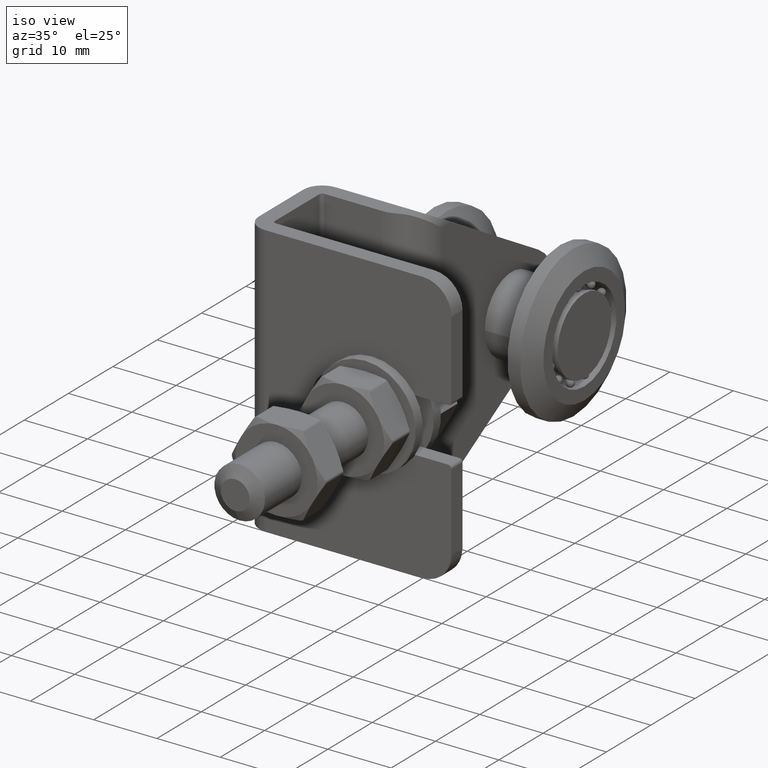
[diagram: clean part render]
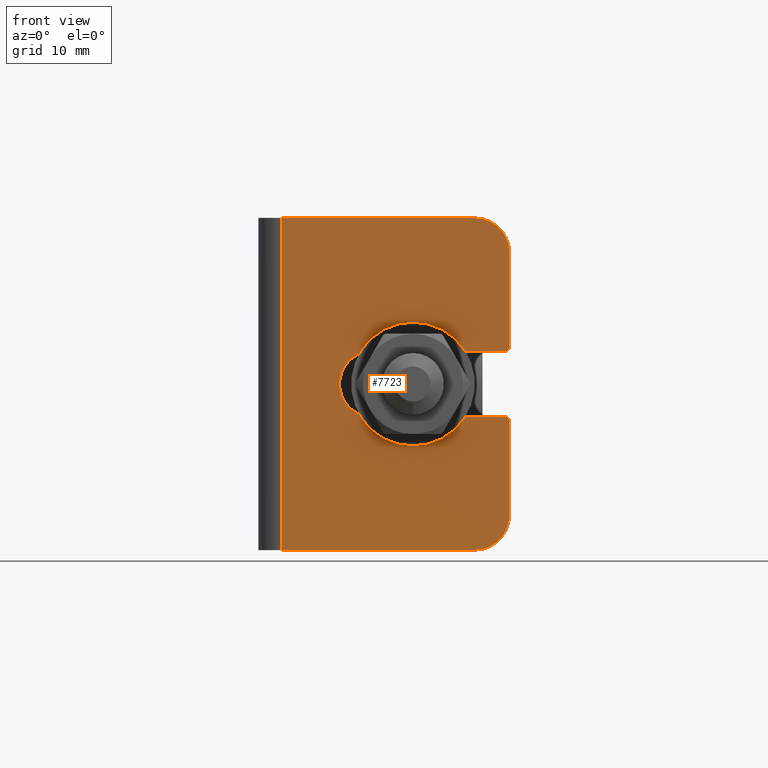
[diagram: tour spotlight — one face highlighted and labeled with its STEP entity id]
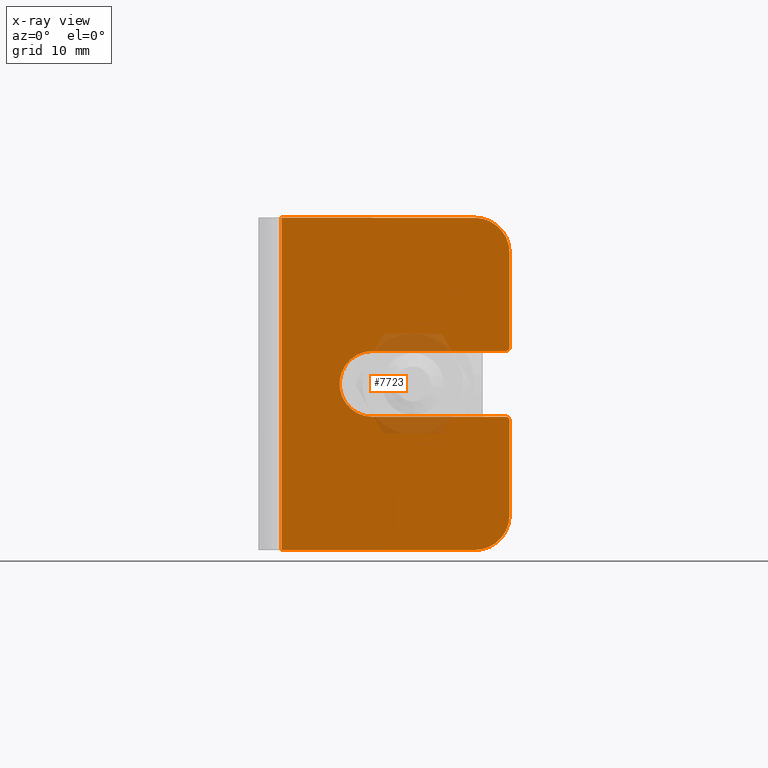
[diagram: x-ray of the same camera — body ghosted, this tour face saturated]
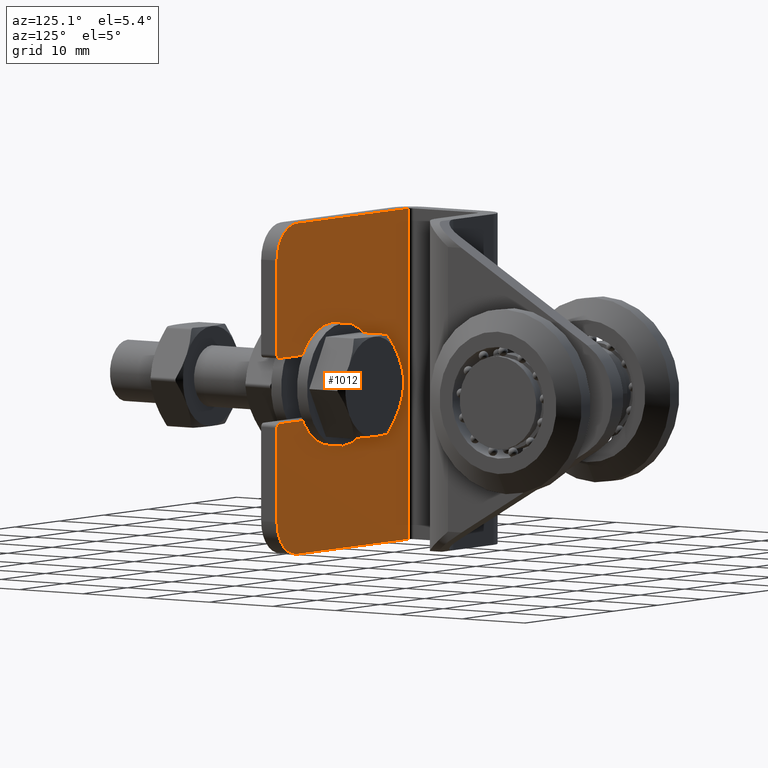
[diagram: tour spotlight — one face highlighted and labeled with its STEP entity id]
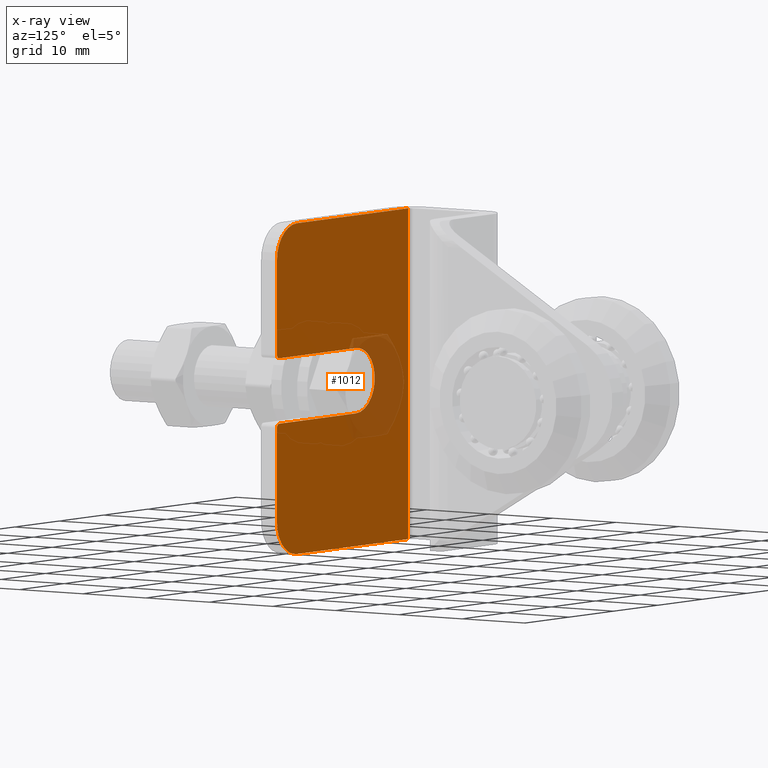
[diagram: x-ray of the same camera — body ghosted, this tour face saturated]
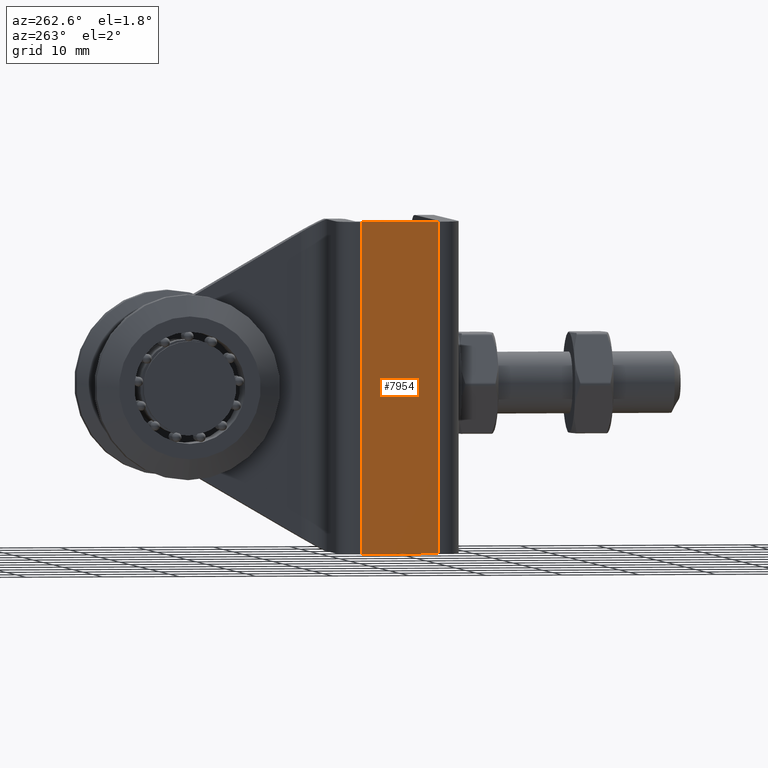
[diagram: tour spotlight — one face highlighted and labeled with its STEP entity id]
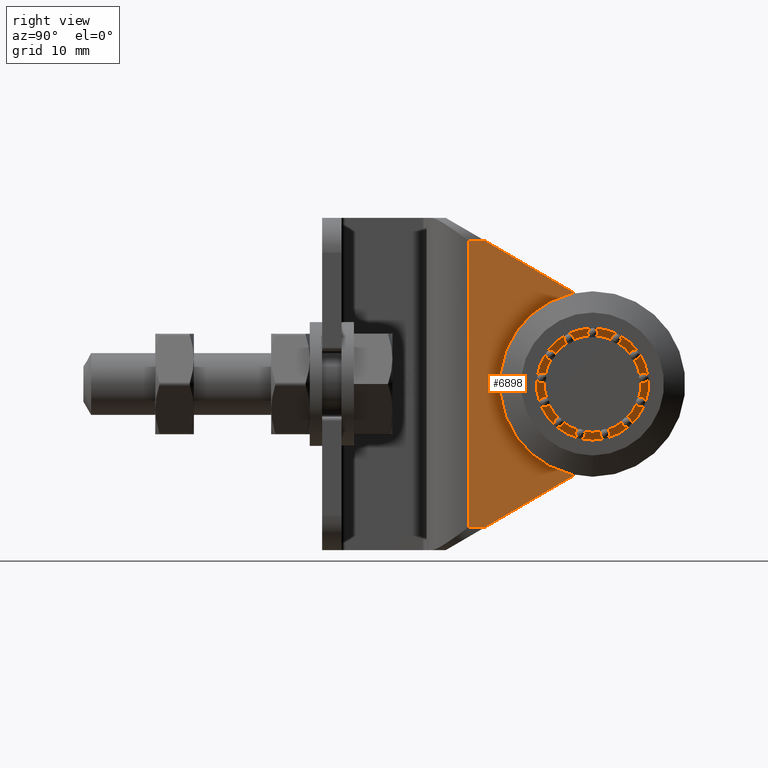
[diagram: tour spotlight — one face highlighted and labeled with its STEP entity id]
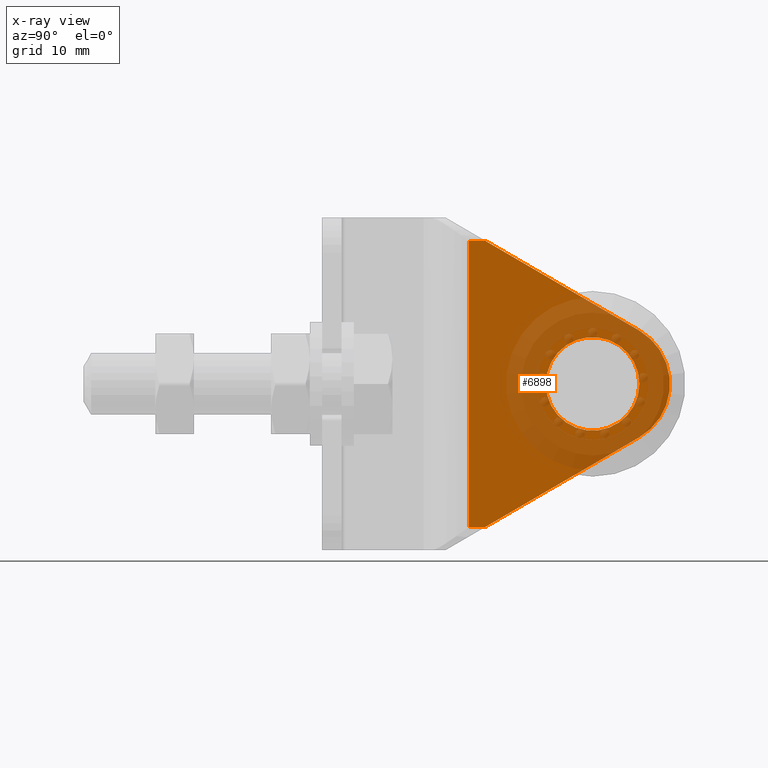
[diagram: x-ray of the same camera — body ghosted, this tour face saturated]
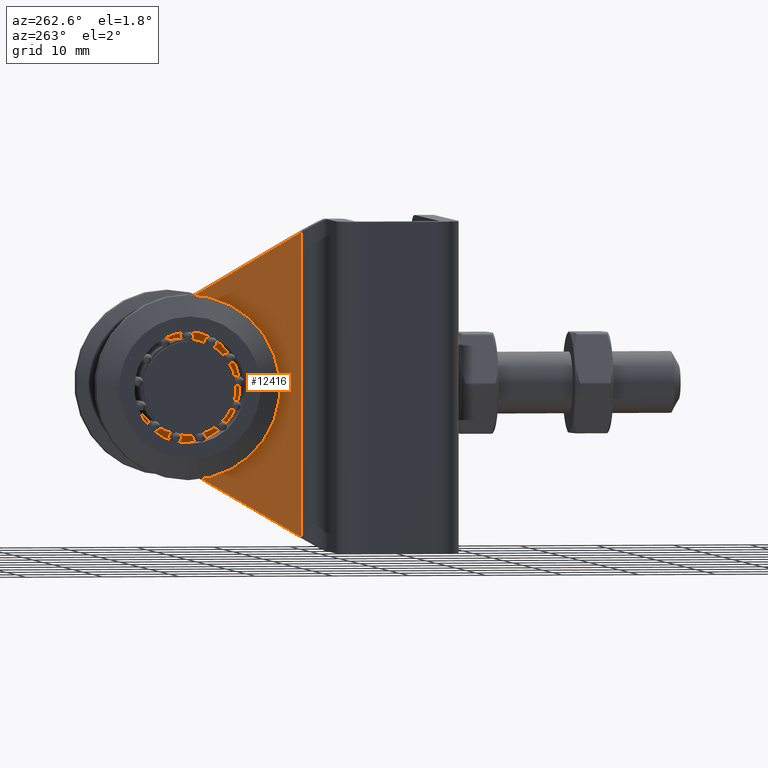
[diagram: tour spotlight — one face highlighted and labeled with its STEP entity id]
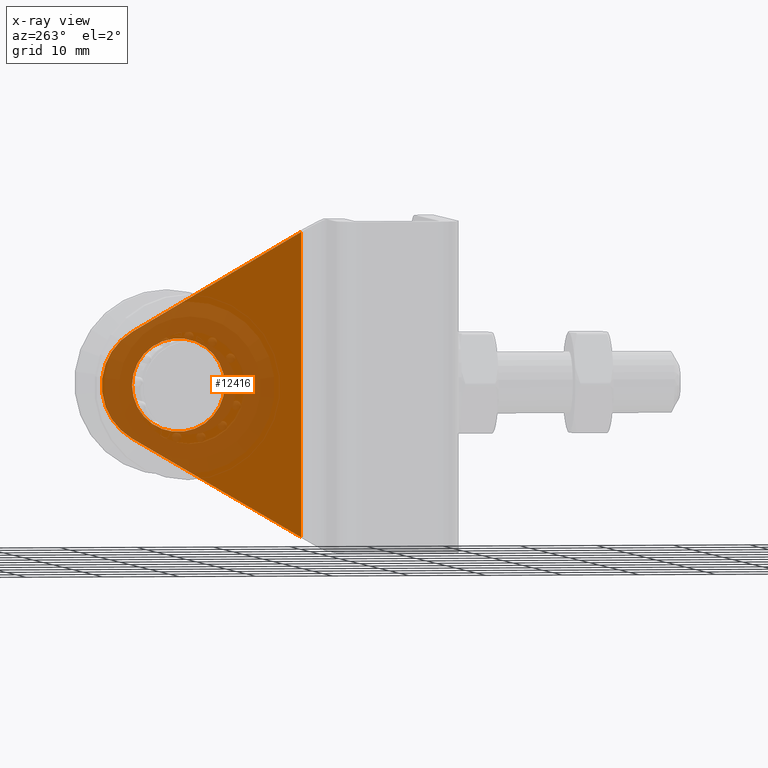
[diagram: x-ray of the same camera — body ghosted, this tour face saturated]
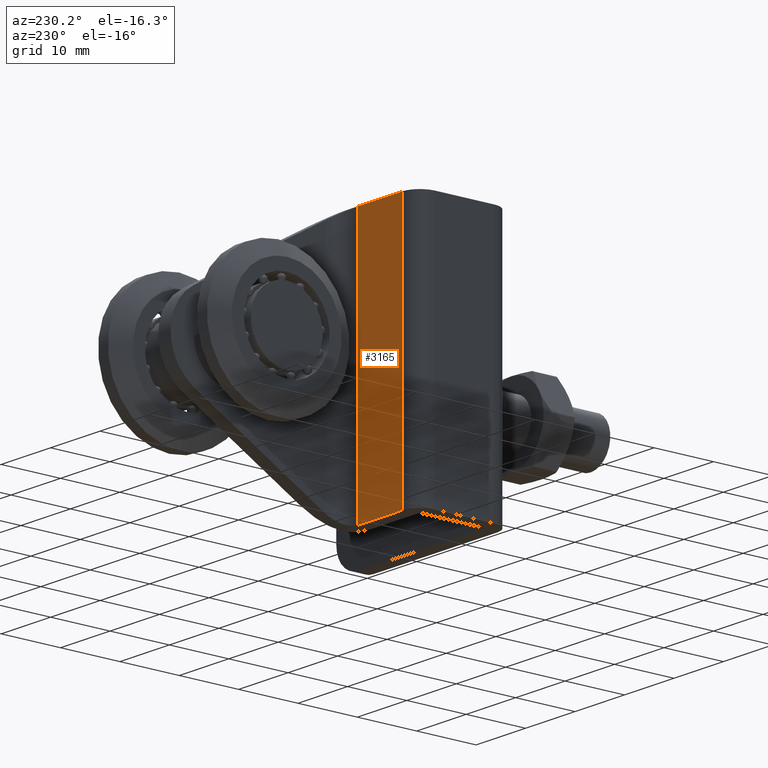
[diagram: tour spotlight — one face highlighted and labeled with its STEP entity id]
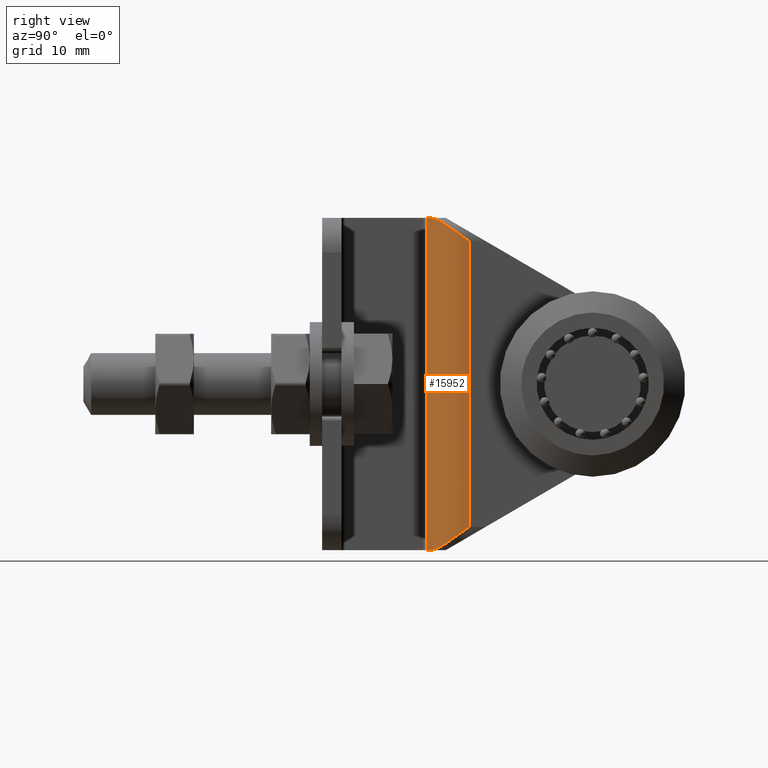
[diagram: tour spotlight — one face highlighted and labeled with its STEP entity id]
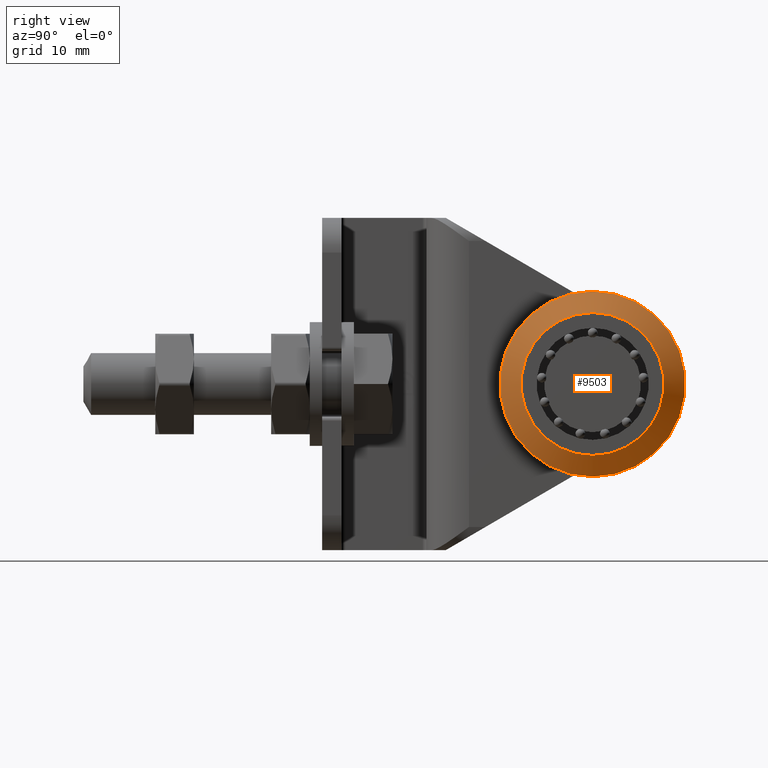
[diagram: tour spotlight — one face highlighted and labeled with its STEP entity id]
A machine part: a face-by-face anatomy tour. The part has 438 B-rep faces; the first image is the clean iso view, then the 8 largest visible faces are spotlighted one at a time (largest first), each with its STEP entity span.

Face 1 — front view, entity #7723. An x-ray twin of the same camera follows (body ghosted, this face saturated) — the face is partly hidden behind the body. In plain terms, the highlighted planar face has unit normal (0, 1, 0).
Definition (entity closure, byte-faithful):
#256 = CIRCLE ( 'NONE', #11237, 0.5000000000000004441 ) ;
#381 = ORIENTED_EDGE ( 'NONE', *, *, #15873, .T. ) ;
#468 = VERTEX_POINT ( 'NONE', #15510 ) ;
#594 = FACE_OUTER_BOUND ( 'NONE', #16821, .T. ) ;
#755 = VERTEX_POINT ( 'NONE', #4625 ) ;
#922 = DIRECTION ( 'NONE',  ( 1.927470528863118556E-15, 0.000000000000000000, 1.000000000000000000 ) ) ;
#1232 = VECTOR ( 'NONE', #16375, 1000.000000000000000 ) ;
#1250 = CARTESIAN_POINT ( 'NONE',  ( -1.499999999999989120, -22.50000000000000355, 4.250000000000003553 ) ) ;
#1329 = CARTESIAN_POINT ( 'NONE',  ( 15.75000000000000000, -22.50000000000000711, -4.250000000000000000 ) ) ;
#1461 = ORIENTED_EDGE ( 'NONE', *, *, #16601, .T. ) ;
#1603 = CARTESIAN_POINT ( 'NONE',  ( -13.24999999999997513, -22.50000000000000355, 21.50000000000000000 ) ) ;
#1608 = EDGE_CURVE ( 'NONE', #12305, #2706, #8283, .T. ) ;
#1628 = ORIENTED_EDGE ( 'NONE', *, *, #7041, .F. ) ;
#2003 = CARTESIAN_POINT ( 'NONE',  ( 16.25000000000000000, -22.50000000000000355, 21.50000000000000000 ) ) ;
#2080 = CARTESIAN_POINT ( 'NONE',  ( 11.75000000000000000, -22.50000000000000355, -16.99999999999999289 ) ) ;
#2089 = CARTESIAN_POINT ( 'NONE',  ( -13.24999999999997513, -22.50000000000000355, 21.50000000000000000 ) ) ;
#2464 = ORIENTED_EDGE ( 'NONE', *, *, #4290, .T. ) ;
#2700 = LINE ( 'NONE', #16696, #16184 ) ;
#2706 = VERTEX_POINT ( 'NONE', #1329 ) ;
#2888 = DIRECTION ( 'NONE',  ( -0.000000000000000000, -1.000000000000000000, -0.000000000000000000 ) ) ;
#3222 = EDGE_CURVE ( 'NONE', #4481, #755, #4764, .T. ) ;
#3306 = DIRECTION ( 'NONE',  ( 5.396917480816731955E-15, 0.000000000000000000, 1.000000000000000000 ) ) ;
#3357 = VERTEX_POINT ( 'NONE', #6178 ) ;
#3437 = DIRECTION ( 'NONE',  ( -0.000000000000000000, -0.000000000000000000, -1.000000000000000000 ) ) ;
#3562 = CARTESIAN_POINT ( 'NONE',  ( -13.24999999999997513, -22.50000000000000355, 21.50000000000000000 ) ) ;
#4211 = DIRECTION ( 'NONE',  ( 0.000000000000000000, 1.000000000000000000, 0.000000000000000000 ) ) ;
#4244 = LINE ( 'NONE', #13411, #5477 ) ;
#4290 = EDGE_CURVE ( 'NONE', #16171, #6110, #5169, .T. ) ;
#4481 = VERTEX_POINT ( 'NONE', #7052 ) ;
#4625 = CARTESIAN_POINT ( 'NONE',  ( 11.74999999999999112, -22.50000000000000355, -21.50000000000000000 ) ) ;
#4692 = CIRCLE ( 'NONE', #12199, 4.500000000000000888 ) ;
#4764 = LINE ( 'NONE', #9858, #8056 ) ;
#5036 = DIRECTION ( 'NONE',  ( -0.000000000000000000, -0.000000000000000000, -1.000000000000000000 ) ) ;
#5169 = CIRCLE ( 'NONE', #13369, 4.250000000000001776 ) ;
#5212 = VERTEX_POINT ( 'NONE', #2089 ) ;
#5477 = VECTOR ( 'NONE', #5561, 1000.000000000000000 ) ;
#5532 = EDGE_CURVE ( 'NONE', #3357, #15833, #10476, .T. ) ;
#5561 = DIRECTION ( 'NONE',  ( -1.000000000000000000, 1.954618001100628066E-16, 4.886545002751570165E-17 ) ) ;
#5662 = VECTOR ( 'NONE', #8130, 1000.000000000000000 ) ;
#5674 = VECTOR ( 'NONE', #5036, 1000.000000000000000 ) ;
#5701 = ORIENTED_EDGE ( 'NONE', *, *, #14760, .T. ) ;
#5964 = DIRECTION ( 'NONE',  ( -0.000000000000000000, -1.000000000000000000, -0.000000000000000000 ) ) ;
#6042 = CARTESIAN_POINT ( 'NONE',  ( 15.75000000000000000, -22.50000000000000355, -4.750000000000000000 ) ) ;
#6110 = VERTEX_POINT ( 'NONE', #1250 ) ;
#6163 = ORIENTED_EDGE ( 'NONE', *, *, #1608, .T. ) ;
#6178 = CARTESIAN_POINT ( 'NONE',  ( 16.25000000000000000, -22.50000000000000355, 16.99999999999999645 ) ) ;
#6297 = AXIS2_PLACEMENT_3D ( 'NONE', #6042, #11389, #11264 ) ;
#6588 = CIRCLE ( 'NONE', #14019, 4.500000000000000888 ) ;
#7041 = EDGE_CURVE ( 'NONE', #5212, #15994, #16809, .T. ) ;
#7052 = CARTESIAN_POINT ( 'NONE',  ( -13.24999999999997513, -22.50000000000000355, -21.50000000000000000 ) ) ;
#7497 = CARTESIAN_POINT ( 'NONE',  ( -1.499999999999990896, -22.50000000000000355, -4.250000000000000000 ) ) ;
#7592 = ORIENTED_EDGE ( 'NONE', *, *, #3222, .T. ) ;
#7652 = CARTESIAN_POINT ( 'NONE',  ( -1.499999999999990008, -22.50000000000000355, 1.517883041479706208E-15 ) ) ;
#7723 = ADVANCED_FACE ( 'NONE', ( #594 ), #12230, .F. ) ;
#7754 = EDGE_CURVE ( 'NONE', #3357, #15994, #4692, .T. ) ;
#8056 = VECTOR ( 'NONE', #15050, 1000.000000000000000 ) ;
#8130 = DIRECTION ( 'NONE',  ( -0.000000000000000000, -0.000000000000000000, -1.000000000000000000 ) ) ;
#8283 = CIRCLE ( 'NONE', #6297, 0.4999999999999995559 ) ;
#8393 = ORIENTED_EDGE ( 'NONE', *, *, #5532, .F. ) ;
#8803 = ORIENTED_EDGE ( 'NONE', *, *, #10147, .F. ) ;
#8939 = LINE ( 'NONE', #1603, #5662 ) ;
#8953 = DIRECTION ( 'NONE',  ( 1.000000000000000000, 0.000000000000000000, 0.000000000000000000 ) ) ;
#9392 = CARTESIAN_POINT ( 'NONE',  ( 16.25000000000000000, -22.50000000000000355, -16.99999999999999289 ) ) ;
#9823 = DIRECTION ( 'NONE',  ( -0.000000000000000000, -1.000000000000000000, -0.000000000000000000 ) ) ;
#9858 = CARTESIAN_POINT ( 'NONE',  ( -13.24999999999997513, -22.50000000000000355, -21.50000000000000000 ) ) ;
#9929 = EDGE_CURVE ( 'NONE', #2706, #16171, #4244, .T. ) ;
#10147 = EDGE_CURVE ( 'NONE', #12305, #11263, #11210, .T. ) ;
#10230 = DIRECTION ( 'NONE',  ( 1.000000000000000000, -1.954618001100628559E-16, -1.954618001100628559E-16 ) ) ;
#10467 = CARTESIAN_POINT ( 'NONE',  ( 16.25000000000000000, -22.50000000000000355, -4.750000000000000888 ) ) ;
#10476 = LINE ( 'NONE', #2003, #15996 ) ;
#11210 = LINE ( 'NONE', #11855, #5674 ) ;
#11237 = AXIS2_PLACEMENT_3D ( 'NONE', #13148, #2888, #11828 ) ;
#11263 = VERTEX_POINT ( 'NONE', #9392 ) ;
#11264 = DIRECTION ( 'NONE',  ( 0.000000000000000000, 0.000000000000000000, 1.000000000000000000 ) ) ;
#11389 = DIRECTION ( 'NONE',  ( -0.000000000000000000, -1.000000000000000000, -0.000000000000000000 ) ) ;
#11607 = EDGE_CURVE ( 'NONE', #5212, #4481, #8939, .T. ) ;
#11828 = DIRECTION ( 'NONE',  ( 0.000000000000000000, 0.000000000000000000, 1.000000000000000000 ) ) ;
#11855 = CARTESIAN_POINT ( 'NONE',  ( 16.25000000000000000, -22.50000000000000355, 21.50000000000000000 ) ) ;
#12199 = AXIS2_PLACEMENT_3D ( 'NONE', #14909, #9823, #3306 ) ;
#12230 = PLANE ( 'NONE',  #14292 ) ;
#12305 = VERTEX_POINT ( 'NONE', #10467 ) ;
#12539 = ORIENTED_EDGE ( 'NONE', *, *, #7754, .T. ) ;
#13148 = CARTESIAN_POINT ( 'NONE',  ( 15.75000000000000000, -22.50000000000000355, 4.750000000000000888 ) ) ;
#13369 = AXIS2_PLACEMENT_3D ( 'NONE', #7652, #16796, #8953 ) ;
#13411 = CARTESIAN_POINT ( 'NONE',  ( -1.499999999999990230, -22.50000000000000355, -4.249999999999999112 ) ) ;
#13786 = ORIENTED_EDGE ( 'NONE', *, *, #9929, .T. ) ;
#14019 = AXIS2_PLACEMENT_3D ( 'NONE', #2080, #5964, #922 ) ;
#14292 = AXIS2_PLACEMENT_3D ( 'NONE', #14812, #4211, #16115 ) ;
#14760 = EDGE_CURVE ( 'NONE', #468, #15833, #256, .T. ) ;
#14791 = CARTESIAN_POINT ( 'NONE',  ( 11.74999999999999112, -22.50000000000000355, 21.50000000000000000 ) ) ;
#14812 = CARTESIAN_POINT ( 'NONE',  ( -13.24999999999997513, -22.50000000000000355, 21.50000000000000000 ) ) ;
#14909 = CARTESIAN_POINT ( 'NONE',  ( 11.75000000000000000, -22.50000000000000355, 16.99999999999999645 ) ) ;
#15050 = DIRECTION ( 'NONE',  ( 1.000000000000000000, 0.000000000000000000, 0.000000000000000000 ) ) ;
#15510 = CARTESIAN_POINT ( 'NONE',  ( 15.75000000000000000, -22.50000000000000711, 4.250000000000000000 ) ) ;
#15833 = VERTEX_POINT ( 'NONE', #16546 ) ;
#15873 = EDGE_CURVE ( 'NONE', #755, #11263, #6588, .T. ) ;
#15994 = VERTEX_POINT ( 'NONE', #14791 ) ;
#15996 = VECTOR ( 'NONE', #3437, 1000.000000000000000 ) ;
#16115 = DIRECTION ( 'NONE',  ( 0.000000000000000000, -0.000000000000000000, 1.000000000000000000 ) ) ;
#16171 = VERTEX_POINT ( 'NONE', #7497 ) ;
#16184 = VECTOR ( 'NONE', #10230, 1000.000000000000000 ) ;
#16375 = DIRECTION ( 'NONE',  ( 1.000000000000000000, 0.000000000000000000, 0.000000000000000000 ) ) ;
#16546 = CARTESIAN_POINT ( 'NONE',  ( 16.25000000000000000, -22.50000000000000355, 4.750000000000000888 ) ) ;
#16601 = EDGE_CURVE ( 'NONE', #6110, #468, #2700, .T. ) ;
#16696 = CARTESIAN_POINT ( 'NONE',  ( 16.25000000000000355, -22.50000000000000711, 4.250000000000000000 ) ) ;
#16783 = ORIENTED_EDGE ( 'NONE', *, *, #11607, .T. ) ;
#16796 = DIRECTION ( 'NONE',  ( 1.176083712526649195E-16, 1.000000000000000000, -0.000000000000000000 ) ) ;
#16809 = LINE ( 'NONE', #3562, #1232 ) ;
#16821 = EDGE_LOOP ( 'NONE', ( #1461, #5701, #8393, #12539, #1628, #16783, #7592, #381, #8803, #6163, #13786, #2464 ) ) ;

Face 2 — auxiliary view, entity #1012. An x-ray twin of the same camera follows (body ghosted, this face saturated) — the face is partly hidden behind the body. In plain terms, the highlighted planar face has unit normal (-0, -1, 0).
Definition (entity closure, byte-faithful):
#568 = FACE_OUTER_BOUND ( 'NONE', #14538, .T. ) ;
#576 = DIRECTION ( 'NONE',  ( 1.176083712526649195E-16, 1.000000000000000000, -0.000000000000000000 ) ) ;
#739 = CIRCLE ( 'NONE', #1133, 4.500000000000000888 ) ;
#844 = VERTEX_POINT ( 'NONE', #8927 ) ;
#958 = CARTESIAN_POINT ( 'NONE',  ( -13.24999999999999467, -20.00000000000000355, -21.50000000000000000 ) ) ;
#1012 = ADVANCED_FACE ( 'NONE', ( #568 ), #8156, .F. ) ;
#1025 = VERTEX_POINT ( 'NONE', #8060 ) ;
#1040 = ORIENTED_EDGE ( 'NONE', *, *, #7977, .F. ) ;
#1080 = ORIENTED_EDGE ( 'NONE', *, *, #16169, .T. ) ;
#1133 = AXIS2_PLACEMENT_3D ( 'NONE', #8440, #576, #12329 ) ;
#1192 = CIRCLE ( 'NONE', #11212, 0.5000000000000004441 ) ;
#1209 = ORIENTED_EDGE ( 'NONE', *, *, #3789, .T. ) ;
#1680 = VERTEX_POINT ( 'NONE', #4740 ) ;
#1697 = DIRECTION ( 'NONE',  ( 1.000000000000000000, 0.000000000000000000, 5.204170427930416550E-15 ) ) ;
#1937 = LINE ( 'NONE', #12403, #14446 ) ;
#1988 = CARTESIAN_POINT ( 'NONE',  ( 15.75000000000000000, -20.00000000000000711, 4.250000000000000000 ) ) ;
#2063 = ORIENTED_EDGE ( 'NONE', *, *, #7702, .T. ) ;
#2743 = DIRECTION ( 'NONE',  ( 1.176083712526649195E-16, 1.000000000000000000, -0.000000000000000000 ) ) ;
#2825 = LINE ( 'NONE', #9577, #15917 ) ;
#2838 = ORIENTED_EDGE ( 'NONE', *, *, #7974, .T. ) ;
#2853 = LINE ( 'NONE', #4225, #8376 ) ;
#2973 = DIRECTION ( 'NONE',  ( 1.176083712526649195E-16, 1.000000000000000000, -0.000000000000000000 ) ) ;
#3075 = VERTEX_POINT ( 'NONE', #15670 ) ;
#3284 = VERTEX_POINT ( 'NONE', #9792 ) ;
#3534 = ORIENTED_EDGE ( 'NONE', *, *, #9263, .T. ) ;
#3789 = EDGE_CURVE ( 'NONE', #14113, #5388, #4746, .T. ) ;
#4217 = AXIS2_PLACEMENT_3D ( 'NONE', #15850, #14590, #11967 ) ;
#4225 = CARTESIAN_POINT ( 'NONE',  ( -13.24999999999999467, -20.00000000000000355, 21.50000000000000000 ) ) ;
#4562 = CARTESIAN_POINT ( 'NONE',  ( 11.75000000000000000, -20.00000000000000711, -21.50000000000000000 ) ) ;
#4706 = CARTESIAN_POINT ( 'NONE',  ( 16.25000000000000000, -20.00000000000000711, 21.50000000000000000 ) ) ;
#4740 = CARTESIAN_POINT ( 'NONE',  ( -1.499999999999990674, -20.00000000000000355, -4.250000000000000000 ) ) ;
#4746 = LINE ( 'NONE', #16878, #15408 ) ;
#4840 = CARTESIAN_POINT ( 'NONE',  ( 16.25000000000000000, -20.00000000000000711, 16.99999999999999645 ) ) ;
#4915 = VECTOR ( 'NONE', #16966, 1000.000000000000000 ) ;
#5064 = LINE ( 'NONE', #4706, #13449 ) ;
#5388 = VERTEX_POINT ( 'NONE', #16860 ) ;
#5449 = CARTESIAN_POINT ( 'NONE',  ( -1.499999999999989786, -20.00000000000000355, 1.517883041479706208E-15 ) ) ;
#5705 = ORIENTED_EDGE ( 'NONE', *, *, #10873, .T. ) ;
#6124 = DIRECTION ( 'NONE',  ( -0.000000000000000000, -0.000000000000000000, -1.000000000000000000 ) ) ;
#6319 = CARTESIAN_POINT ( 'NONE',  ( 11.75000000000000000, -20.00000000000000711, -16.99999999999999289 ) ) ;
#6846 = AXIS2_PLACEMENT_3D ( 'NONE', #5449, #2743, #14620 ) ;
#7011 = ORIENTED_EDGE ( 'NONE', *, *, #14840, .F. ) ;
#7141 = DIRECTION ( 'NONE',  ( 1.000000000000000000, 0.000000000000000000, 0.000000000000000000 ) ) ;
#7702 = EDGE_CURVE ( 'NONE', #844, #1025, #11054, .T. ) ;
#7974 = EDGE_CURVE ( 'NONE', #10918, #12060, #7996, .T. ) ;
#7977 = EDGE_CURVE ( 'NONE', #15731, #3075, #14144, .T. ) ;
#7996 = CIRCLE ( 'NONE', #9023, 4.500000000000000888 ) ;
#8060 = CARTESIAN_POINT ( 'NONE',  ( 16.25000000000000000, -20.00000000000000711, -4.750000000000000888 ) ) ;
#8156 = PLANE ( 'NONE',  #4217 ) ;
#8228 = CARTESIAN_POINT ( 'NONE',  ( 15.75000000000000000, -20.00000000000000711, -4.750000000000000000 ) ) ;
#8376 = VECTOR ( 'NONE', #13444, 1000.000000000000000 ) ;
#8440 = CARTESIAN_POINT ( 'NONE',  ( 11.75000000000000000, -20.00000000000000711, 16.99999999999999645 ) ) ;
#8585 = EDGE_CURVE ( 'NONE', #3075, #3284, #2853, .T. ) ;
#8927 = CARTESIAN_POINT ( 'NONE',  ( 15.75000000000000000, -20.00000000000000711, -4.250000000000000000 ) ) ;
#9023 = AXIS2_PLACEMENT_3D ( 'NONE', #6319, #9092, #15708 ) ;
#9092 = DIRECTION ( 'NONE',  ( 1.176083712526649195E-16, 1.000000000000000000, -0.000000000000000000 ) ) ;
#9263 = EDGE_CURVE ( 'NONE', #5388, #12987, #1192, .T. ) ;
#9577 = CARTESIAN_POINT ( 'NONE',  ( 16.25000000000000355, -20.00000000000000711, 4.250000000000000000 ) ) ;
#9792 = CARTESIAN_POINT ( 'NONE',  ( -13.24999999999999467, -20.00000000000000355, -21.50000000000000000 ) ) ;
#10471 = VECTOR ( 'NONE', #16484, 1000.000000000000000 ) ;
#10768 = EDGE_CURVE ( 'NONE', #16984, #12987, #2825, .T. ) ;
#10873 = EDGE_CURVE ( 'NONE', #15731, #14113, #739, .T. ) ;
#10918 = VERTEX_POINT ( 'NONE', #16545 ) ;
#11019 = EDGE_CURVE ( 'NONE', #1025, #10918, #5064, .T. ) ;
#11054 = CIRCLE ( 'NONE', #15709, 0.5000000000000004441 ) ;
#11074 = CARTESIAN_POINT ( 'NONE',  ( -1.499999999999988898, -20.00000000000000355, 4.250000000000003553 ) ) ;
#11212 = AXIS2_PLACEMENT_3D ( 'NONE', #11708, #15863, #7141 ) ;
#11318 = ORIENTED_EDGE ( 'NONE', *, *, #13235, .F. ) ;
#11530 = ORIENTED_EDGE ( 'NONE', *, *, #8585, .F. ) ;
#11708 = CARTESIAN_POINT ( 'NONE',  ( 15.75000000000000000, -20.00000000000000711, 4.750000000000000888 ) ) ;
#11715 = LINE ( 'NONE', #958, #10471 ) ;
#11967 = DIRECTION ( 'NONE',  ( 1.000000000000000000, -1.176083712526649195E-16, 0.000000000000000000 ) ) ;
#12060 = VERTEX_POINT ( 'NONE', #4562 ) ;
#12112 = DIRECTION ( 'NONE',  ( 1.000000000000000000, -1.954618001100628559E-16, -1.954618001100628559E-16 ) ) ;
#12142 = CIRCLE ( 'NONE', #6846, 4.250000000000001776 ) ;
#12329 = DIRECTION ( 'NONE',  ( 1.000000000000000000, 0.000000000000000000, 0.000000000000000000 ) ) ;
#12403 = CARTESIAN_POINT ( 'NONE',  ( -1.499999999999990008, -20.00000000000000355, -4.249999999999999112 ) ) ;
#12987 = VERTEX_POINT ( 'NONE', #1988 ) ;
#13235 = EDGE_CURVE ( 'NONE', #844, #1680, #1937, .T. ) ;
#13444 = DIRECTION ( 'NONE',  ( -0.000000000000000000, -0.000000000000000000, -1.000000000000000000 ) ) ;
#13449 = VECTOR ( 'NONE', #6124, 1000.000000000000000 ) ;
#13545 = CARTESIAN_POINT ( 'NONE',  ( 11.75000000000000000, -20.00000000000000711, 21.50000000000000000 ) ) ;
#14113 = VERTEX_POINT ( 'NONE', #4840 ) ;
#14144 = LINE ( 'NONE', #14291, #4915 ) ;
#14201 = DIRECTION ( 'NONE',  ( -0.000000000000000000, -0.000000000000000000, -1.000000000000000000 ) ) ;
#14291 = CARTESIAN_POINT ( 'NONE',  ( -13.24999999999999467, -20.00000000000000355, 21.50000000000000000 ) ) ;
#14446 = VECTOR ( 'NONE', #16409, 1000.000000000000000 ) ;
#14538 = EDGE_LOOP ( 'NONE', ( #1209, #3534, #15517, #7011, #11318, #2063, #15129, #2838, #1080, #11530, #1040, #5705 ) ) ;
#14590 = DIRECTION ( 'NONE',  ( -1.176083712526649195E-16, -1.000000000000000000, 0.000000000000000000 ) ) ;
#14620 = DIRECTION ( 'NONE',  ( 1.000000000000000000, 0.000000000000000000, 0.000000000000000000 ) ) ;
#14840 = EDGE_CURVE ( 'NONE', #1680, #16984, #12142, .T. ) ;
#15129 = ORIENTED_EDGE ( 'NONE', *, *, #11019, .T. ) ;
#15408 = VECTOR ( 'NONE', #14201, 1000.000000000000000 ) ;
#15517 = ORIENTED_EDGE ( 'NONE', *, *, #10768, .F. ) ;
#15670 = CARTESIAN_POINT ( 'NONE',  ( -13.24999999999999467, -20.00000000000000355, 21.50000000000000000 ) ) ;
#15708 = DIRECTION ( 'NONE',  ( 1.000000000000000000, 0.000000000000000000, 0.000000000000000000 ) ) ;
#15709 = AXIS2_PLACEMENT_3D ( 'NONE', #8228, #2973, #1697 ) ;
#15731 = VERTEX_POINT ( 'NONE', #13545 ) ;
#15850 = CARTESIAN_POINT ( 'NONE',  ( -13.24999999999999467, -20.00000000000000355, 21.50000000000000000 ) ) ;
#15863 = DIRECTION ( 'NONE',  ( 1.176083712526649195E-16, 1.000000000000000000, -0.000000000000000000 ) ) ;
#15917 = VECTOR ( 'NONE', #12112, 1000.000000000000000 ) ;
#16169 = EDGE_CURVE ( 'NONE', #12060, #3284, #11715, .T. ) ;
#16409 = DIRECTION ( 'NONE',  ( -1.000000000000000000, 1.954618001100628066E-16, 4.886545002751570165E-17 ) ) ;
#16484 = DIRECTION ( 'NONE',  ( -1.000000000000000000, 1.176083712526649195E-16, -0.000000000000000000 ) ) ;
#16545 = CARTESIAN_POINT ( 'NONE',  ( 16.25000000000000000, -20.00000000000000711, -16.99999999999999289 ) ) ;
#16860 = CARTESIAN_POINT ( 'NONE',  ( 16.25000000000000000, -20.00000000000000711, 4.750000000000000888 ) ) ;
#16878 = CARTESIAN_POINT ( 'NONE',  ( 16.25000000000000000, -20.00000000000000711, 21.50000000000000000 ) ) ;
#16966 = DIRECTION ( 'NONE',  ( -1.000000000000000000, 1.176083712526649195E-16, -0.000000000000000000 ) ) ;
#16984 = VERTEX_POINT ( 'NONE', #11074 ) ;

Face 3 — auxiliary view, entity #7954. In plain terms, the highlighted planar face has unit normal (1, 0, 0).
Definition (entity closure, byte-faithful):
#1039 = EDGE_CURVE ( 'NONE', #3707, #4133, #1523, .T. ) ;
#1116 = VECTOR ( 'NONE', #12181, 1000.000000000000000 ) ;
#1268 = ORIENTED_EDGE ( 'NONE', *, *, #15914, .F. ) ;
#1523 = LINE ( 'NONE', #6727, #1116 ) ;
#1859 = VECTOR ( 'NONE', #2321, 1000.000000000000000 ) ;
#1969 = EDGE_LOOP ( 'NONE', ( #6183, #1268, #11064, #7788 ) ) ;
#2321 = DIRECTION ( 'NONE',  ( -0.000000000000000000, -0.000000000000000000, -1.000000000000000000 ) ) ;
#2657 = DIRECTION ( 'NONE',  ( 3.469446951953629966E-16, -1.000000000000000000, 0.000000000000000000 ) ) ;
#3707 = VERTEX_POINT ( 'NONE', #11198 ) ;
#3999 = EDGE_CURVE ( 'NONE', #3707, #10964, #8860, .T. ) ;
#4133 = VERTEX_POINT ( 'NONE', #15433 ) ;
#4784 = DIRECTION ( 'NONE',  ( -0.000000000000000000, -0.000000000000000000, -1.000000000000000000 ) ) ;
#5247 = PLANE ( 'NONE',  #11665 ) ;
#6183 = ORIENTED_EDGE ( 'NONE', *, *, #8515, .T. ) ;
#6515 = CARTESIAN_POINT ( 'NONE',  ( -16.24999999999999645, -19.49999999999998224, -21.50000000000000000 ) ) ;
#6727 = CARTESIAN_POINT ( 'NONE',  ( -16.25000000000000000, -9.500000000000026645, 21.50000000000000000 ) ) ;
#6938 = VECTOR ( 'NONE', #2657, 1000.000000000000000 ) ;
#7788 = ORIENTED_EDGE ( 'NONE', *, *, #3999, .T. ) ;
#7954 = ADVANCED_FACE ( 'NONE', ( #8395 ), #5247, .F. ) ;
#8223 = LINE ( 'NONE', #14280, #1859 ) ;
#8395 = FACE_OUTER_BOUND ( 'NONE', #1969, .T. ) ;
#8515 = EDGE_CURVE ( 'NONE', #10964, #11890, #16985, .T. ) ;
#8635 = VECTOR ( 'NONE', #4784, 1000.000000000000000 ) ;
#8860 = LINE ( 'NONE', #16103, #8635 ) ;
#10294 = DIRECTION ( 'NONE',  ( -3.469446951953629966E-16, 1.000000000000000000, 0.000000000000000000 ) ) ;
#10964 = VERTEX_POINT ( 'NONE', #10999 ) ;
#10999 = CARTESIAN_POINT ( 'NONE',  ( -16.25000000000000000, -9.500000000000026645, -21.50000000000000000 ) ) ;
#11064 = ORIENTED_EDGE ( 'NONE', *, *, #1039, .F. ) ;
#11198 = CARTESIAN_POINT ( 'NONE',  ( -16.25000000000000000, -9.500000000000026645, 21.50000000000000000 ) ) ;
#11665 = AXIS2_PLACEMENT_3D ( 'NONE', #11792, #12918, #10294 ) ;
#11792 = CARTESIAN_POINT ( 'NONE',  ( -16.25000000000000000, -9.500000000000026645, 21.50000000000000000 ) ) ;
#11890 = VERTEX_POINT ( 'NONE', #6515 ) ;
#12181 = DIRECTION ( 'NONE',  ( 3.469446951953629966E-16, -1.000000000000000000, 0.000000000000000000 ) ) ;
#12918 = DIRECTION ( 'NONE',  ( 1.000000000000000000, 3.469446951953629966E-16, -0.000000000000000000 ) ) ;
#14280 = CARTESIAN_POINT ( 'NONE',  ( -16.24999999999999645, -19.49999999999998224, 21.50000000000000000 ) ) ;
#14487 = CARTESIAN_POINT ( 'NONE',  ( -16.25000000000000000, -9.500000000000026645, -21.50000000000000000 ) ) ;
#15433 = CARTESIAN_POINT ( 'NONE',  ( -16.24999999999999645, -19.49999999999998224, 21.50000000000000000 ) ) ;
#15914 = EDGE_CURVE ( 'NONE', #4133, #11890, #8223, .T. ) ;
#16103 = CARTESIAN_POINT ( 'NONE',  ( -16.25000000000000000, -9.500000000000026645, 21.50000000000000000 ) ) ;
#16985 = LINE ( 'NONE', #14487, #6938 ) ;

Face 4 — right view, entity #6898. An x-ray twin of the same camera follows (body ghosted, this face saturated) — the face is partly hidden behind the body. In plain terms, the highlighted planar face has unit normal (-1, -0, 0).
Definition (entity closure, byte-faithful):
#9 = CARTESIAN_POINT ( 'NONE',  ( 1.250000000000003331, -3.500000000000006661, 21.50000000000000000 ) ) ;
#38 = VERTEX_POINT ( 'NONE', #11618 ) ;
#57 = CIRCLE ( 'NONE', #1273, 8.000000000000000000 ) ;
#192 = LINE ( 'NONE', #11954, #10836 ) ;
#293 = DIRECTION ( 'NONE',  ( 7.168278826350445473E-17, -1.000000000000000000, 0.000000000000000000 ) ) ;
#689 = DIRECTION ( 'NONE',  ( 8.260587980841938780E-17, -1.000000000000000000, -0.000000000000000000 ) ) ;
#1273 = AXIS2_PLACEMENT_3D ( 'NONE', #16411, #12531, #4670 ) ;
#1627 = ORIENTED_EDGE ( 'NONE', *, *, #14089, .F. ) ;
#2019 = VERTEX_POINT ( 'NONE', #9931 ) ;
#2029 = LINE ( 'NONE', #14274, #2451 ) ;
#2137 = CARTESIAN_POINT ( 'NONE',  ( 1.250000000000001110, 18.52857198149307294, 6.911628447039741552 ) ) ;
#2247 = ORIENTED_EDGE ( 'NONE', *, *, #8472, .T. ) ;
#2451 = VECTOR ( 'NONE', #9068, 1000.000000000000000 ) ;
#2968 = DIRECTION ( 'NONE',  ( -1.000000000000000000, -8.260587980841938780E-17, 0.000000000000000000 ) ) ;
#2991 = CARTESIAN_POINT ( 'NONE',  ( 1.250000000000001110, 12.49999999999999645, 1.056257864264590653E-15 ) ) ;
#3021 = CIRCLE ( 'NONE', #6271, 6.049999999999997158 ) ;
#3732 = VERTEX_POINT ( 'NONE', #15551 ) ;
#3970 = DIRECTION ( 'NONE',  ( 0.000000000000000000, 0.000000000000000000, -1.000000000000000000 ) ) ;
#4670 = DIRECTION ( 'NONE',  ( 8.131516293641283255E-17, -1.000000000000000000, 0.000000000000000000 ) ) ;
#4932 = FACE_OUTER_BOUND ( 'NONE', #14533, .T. ) ;
#5460 = DIRECTION ( 'NONE',  ( 7.136764359707716319E-17, -0.8639535558799678050, -0.5035714976866335624 ) ) ;
#6271 = AXIS2_PLACEMENT_3D ( 'NONE', #2991, #10818, #293 ) ;
#6707 = VECTOR ( 'NONE', #3970, 1000.000000000000000 ) ;
#6889 = PLANE ( 'NONE',  #14065 ) ;
#6898 = ADVANCED_FACE ( 'NONE', ( #10055, #4932 ), #6889, .F. ) ;
#7040 = EDGE_CURVE ( 'NONE', #13781, #13036, #9027, .T. ) ;
#8048 = EDGE_CURVE ( 'NONE', #3732, #13489, #192, .T. ) ;
#8472 = EDGE_CURVE ( 'NONE', #38, #13489, #2029, .T. ) ;
#8996 = ORIENTED_EDGE ( 'NONE', *, *, #9831, .T. ) ;
#9027 = LINE ( 'NONE', #11351, #10261 ) ;
#9068 = DIRECTION ( 'NONE',  ( -8.260587980841938780E-17, 1.000000000000000000, 0.000000000000000000 ) ) ;
#9766 = EDGE_CURVE ( 'NONE', #13036, #38, #12045, .T. ) ;
#9831 = EDGE_CURVE ( 'NONE', #2019, #2019, #3021, .T. ) ;
#9931 = CARTESIAN_POINT ( 'NONE',  ( 1.250000000000001554, 6.450000000000000178, 1.056257864264590653E-15 ) ) ;
#10055 = FACE_BOUND ( 'NONE', #10715, .T. ) ;
#10065 = ORIENTED_EDGE ( 'NONE', *, *, #7040, .T. ) ;
#10261 = VECTOR ( 'NONE', #689, 1000.000000000000000 ) ;
#10358 = DIRECTION ( 'NONE',  ( -7.136764359707715087E-17, 0.8639535558799678050, -0.5035714976866337844 ) ) ;
#10455 = ORIENTED_EDGE ( 'NONE', *, *, #9766, .T. ) ;
#10663 = VECTOR ( 'NONE', #10358, 1000.000000000000114 ) ;
#10715 = EDGE_LOOP ( 'NONE', ( #8996 ) ) ;
#10818 = DIRECTION ( 'NONE',  ( -1.000000000000000000, -8.260587980841938780E-17, 0.000000000000000000 ) ) ;
#10836 = VECTOR ( 'NONE', #5460, 1000.000000000000227 ) ;
#10997 = VERTEX_POINT ( 'NONE', #2137 ) ;
#11351 = CARTESIAN_POINT ( 'NONE',  ( 1.250000000000003775, -9.000000000000001776, 18.50000000000000000 ) ) ;
#11507 = ORIENTED_EDGE ( 'NONE', *, *, #8048, .F. ) ;
#11618 = CARTESIAN_POINT ( 'NONE',  ( 1.250000000000003331, -3.500000000000006661, -18.49999999999999645 ) ) ;
#11811 = CARTESIAN_POINT ( 'NONE',  ( 1.250000000000003109, -1.353043352241543262, 18.50000000000000355 ) ) ;
#11906 = LINE ( 'NONE', #14298, #10663 ) ;
#11954 = CARTESIAN_POINT ( 'NONE',  ( 1.250000000000000222, 33.85373925565681219, 2.020932087060320459 ) ) ;
#12045 = LINE ( 'NONE', #9, #6707 ) ;
#12159 = ORIENTED_EDGE ( 'NONE', *, *, #16691, .F. ) ;
#12531 = DIRECTION ( 'NONE',  ( -1.000000000000000000, -8.260587980841938780E-17, 0.000000000000000000 ) ) ;
#13036 = VERTEX_POINT ( 'NONE', #15235 ) ;
#13489 = VERTEX_POINT ( 'NONE', #14835 ) ;
#13781 = VERTEX_POINT ( 'NONE', #11811 ) ;
#14065 = AXIS2_PLACEMENT_3D ( 'NONE', #14853, #2968, #14809 ) ;
#14089 = EDGE_CURVE ( 'NONE', #10997, #3732, #57, .T. ) ;
#14274 = CARTESIAN_POINT ( 'NONE',  ( 1.250000000000001110, 22.50000000000000000, -18.49999999999999645 ) ) ;
#14298 = CARTESIAN_POINT ( 'NONE',  ( 1.250000000000001776, 15.14605665481157715, 8.883190804081122494 ) ) ;
#14533 = EDGE_LOOP ( 'NONE', ( #10065, #10455, #2247, #11507, #1627, #12159 ) ) ;
#14809 = DIRECTION ( 'NONE',  ( 8.260587980841938780E-17, -1.000000000000000000, 0.000000000000000000 ) ) ;
#14835 = CARTESIAN_POINT ( 'NONE',  ( 1.250000000000003109, -1.353043352241539710, -18.50000000000000355 ) ) ;
#14853 = CARTESIAN_POINT ( 'NONE',  ( 1.250000000000001110, 22.50000000000000000, 21.50000000000000000 ) ) ;
#15235 = CARTESIAN_POINT ( 'NONE',  ( 1.250000000000003331, -3.500000000000006661, 18.50000000000000000 ) ) ;
#15551 = CARTESIAN_POINT ( 'NONE',  ( 1.250000000000001110, 18.52857198149307294, -6.911628447039742440 ) ) ;
#16411 = CARTESIAN_POINT ( 'NONE',  ( 1.250000000000001110, 14.49999999999999822, 8.696207022725956487E-16 ) ) ;
#16691 = EDGE_CURVE ( 'NONE', #13781, #10997, #11906, .T. ) ;

Face 5 — auxiliary view, entity #12416. An x-ray twin of the same camera follows (body ghosted, this face saturated) — the face is partly hidden behind the body. In plain terms, the highlighted planar face has unit normal (1, -0, 0).
Definition (entity closure, byte-faithful):
#386 = EDGE_CURVE ( 'NONE', #2701, #10054, #13519, .T. ) ;
#523 = CARTESIAN_POINT ( 'NONE',  ( -1.249999999999997335, 33.85373925565681219, 2.020932087060320459 ) ) ;
#829 = VECTOR ( 'NONE', #14794, 1000.000000000000114 ) ;
#1099 = CARTESIAN_POINT ( 'NONE',  ( -1.250000000000003331, -3.500000000000002220, 21.45803989154981295 ) ) ;
#1147 = CARTESIAN_POINT ( 'NONE',  ( -1.249999999999997558, 12.49999999999999645, 1.515500413944847853E-15 ) ) ;
#1251 = ORIENTED_EDGE ( 'NONE', *, *, #386, .F. ) ;
#1264 = CARTESIAN_POINT ( 'NONE',  ( -1.250000000000001110, 18.52857198149307294, 6.911628447039741552 ) ) ;
#1353 = DIRECTION ( 'NONE',  ( 1.000000000000000000, -1.570223836013489248E-16, 0.000000000000000000 ) ) ;
#2227 = CARTESIAN_POINT ( 'NONE',  ( -1.250000000000001110, 18.52857198149307294, -6.911628447039742440 ) ) ;
#2522 = VERTEX_POINT ( 'NONE', #16336 ) ;
#2528 = AXIS2_PLACEMENT_3D ( 'NONE', #11617, #1353, #11843 ) ;
#2701 = VERTEX_POINT ( 'NONE', #15871 ) ;
#3006 = CARTESIAN_POINT ( 'NONE',  ( -1.249999999999999112, 22.50000000000000000, 21.50000000000000000 ) ) ;
#3812 = FACE_BOUND ( 'NONE', #9225, .T. ) ;
#3914 = LINE ( 'NONE', #1099, #16189 ) ;
#4819 = DIRECTION ( 'NONE',  ( -0.000000000000000000, -0.000000000000000000, 1.000000000000000000 ) ) ;
#5428 = AXIS2_PLACEMENT_3D ( 'NONE', #3006, #13597, #12275 ) ;
#5562 = EDGE_CURVE ( 'NONE', #2701, #2522, #3914, .T. ) ;
#5731 = DIRECTION ( 'NONE',  ( 1.356600466651337482E-16, 0.8639535558799678050, 0.5035714976866335624 ) ) ;
#6631 = EDGE_CURVE ( 'NONE', #16228, #2522, #6979, .T. ) ;
#6979 = LINE ( 'NONE', #13465, #829 ) ;
#7657 = EDGE_LOOP ( 'NONE', ( #1251, #15132, #16425, #8680 ) ) ;
#7804 = DIRECTION ( 'NONE',  ( 1.433655765270089341E-16, 1.000000000000000000, 0.000000000000000000 ) ) ;
#8316 = FACE_OUTER_BOUND ( 'NONE', #7657, .T. ) ;
#8680 = ORIENTED_EDGE ( 'NONE', *, *, #16740, .F. ) ;
#9225 = EDGE_LOOP ( 'NONE', ( #12877 ) ) ;
#10054 = VERTEX_POINT ( 'NONE', #2227 ) ;
#10168 = CIRCLE ( 'NONE', #16150, 6.049999999999996270 ) ;
#11065 = CIRCLE ( 'NONE', #2528, 8.000000000000000000 ) ;
#11151 = EDGE_CURVE ( 'NONE', #13299, #13299, #10168, .T. ) ;
#11540 = DIRECTION ( 'NONE',  ( 1.000000000000000000, -1.570223836013489248E-16, 0.000000000000000000 ) ) ;
#11617 = CARTESIAN_POINT ( 'NONE',  ( -1.250000000000001110, 14.49999999999999822, 8.696207022725956487E-16 ) ) ;
#11843 = DIRECTION ( 'NONE',  ( 1.626303258728256651E-16, 1.000000000000000000, 0.000000000000000000 ) ) ;
#12172 = PLANE ( 'NONE',  #5428 ) ;
#12275 = DIRECTION ( 'NONE',  ( 1.570223836013489248E-16, 1.000000000000000000, 0.000000000000000000 ) ) ;
#12416 = ADVANCED_FACE ( 'NONE', ( #3812, #8316 ), #12172, .F. ) ;
#12877 = ORIENTED_EDGE ( 'NONE', *, *, #11151, .T. ) ;
#13299 = VERTEX_POINT ( 'NONE', #15252 ) ;
#13465 = CARTESIAN_POINT ( 'NONE',  ( -1.250000000000000222, 15.14605665481157715, 8.883190804081122494 ) ) ;
#13519 = LINE ( 'NONE', #523, #16999 ) ;
#13597 = DIRECTION ( 'NONE',  ( 1.000000000000000000, -1.570223836013489248E-16, 0.000000000000000000 ) ) ;
#14794 = DIRECTION ( 'NONE',  ( -1.356600466651337236E-16, -0.8639535558799678050, 0.5035714976866337844 ) ) ;
#15132 = ORIENTED_EDGE ( 'NONE', *, *, #5562, .T. ) ;
#15252 = CARTESIAN_POINT ( 'NONE',  ( -1.249999999999996669, 18.54999999999999361, 1.515500413944847853E-15 ) ) ;
#15871 = CARTESIAN_POINT ( 'NONE',  ( -1.250000000000003331, -3.500000000000016875, -19.75139385933636405 ) ) ;
#16150 = AXIS2_PLACEMENT_3D ( 'NONE', #1147, #11540, #7804 ) ;
#16189 = VECTOR ( 'NONE', #4819, 1000.000000000000000 ) ;
#16228 = VERTEX_POINT ( 'NONE', #1264 ) ;
#16336 = CARTESIAN_POINT ( 'NONE',  ( -1.250000000000003331, -3.500000000000010214, 19.75139385933636049 ) ) ;
#16425 = ORIENTED_EDGE ( 'NONE', *, *, #6631, .F. ) ;
#16740 = EDGE_CURVE ( 'NONE', #10054, #16228, #11065, .T. ) ;
#16999 = VECTOR ( 'NONE', #5731, 1000.000000000000227 ) ;

Face 6 — auxiliary view, entity #3165. In plain terms, the highlighted planar face has unit normal (0, -1, 0).
Definition (entity closure, byte-faithful):
#246 = VERTEX_POINT ( 'NONE', #11952 ) ;
#1041 = CARTESIAN_POINT ( 'NONE',  ( -1.250000000000003775, -6.500000000000000888, -21.50000000000000000 ) ) ;
#1084 = DIRECTION ( 'NONE',  ( -1.000000000000000000, -3.614007241618355180E-16, 0.000000000000000000 ) ) ;
#1269 = VECTOR ( 'NONE', #1450, 1000.000000000000000 ) ;
#1450 = DIRECTION ( 'NONE',  ( -0.000000000000000000, -0.000000000000000000, -1.000000000000000000 ) ) ;
#1931 = ORIENTED_EDGE ( 'NONE', *, *, #4320, .F. ) ;
#2922 = EDGE_CURVE ( 'NONE', #16557, #3858, #8672, .T. ) ;
#3165 = ADVANCED_FACE ( 'NONE', ( #12981 ), #5832, .F. ) ;
#3318 = ORIENTED_EDGE ( 'NONE', *, *, #4431, .T. ) ;
#3339 = CARTESIAN_POINT ( 'NONE',  ( -1.250000000000003775, -6.500000000000000888, 21.50000000000000000 ) ) ;
#3858 = VERTEX_POINT ( 'NONE', #16973 ) ;
#4320 = EDGE_CURVE ( 'NONE', #3858, #246, #11741, .T. ) ;
#4431 = EDGE_CURVE ( 'NONE', #16557, #8186, #16405, .T. ) ;
#4531 = CARTESIAN_POINT ( 'NONE',  ( -4.250000000000002665, -6.500000000000001776, -21.45803989154980584 ) ) ;
#5599 = VECTOR ( 'NONE', #1084, 1000.000000000000000 ) ;
#5832 = PLANE ( 'NONE',  #11147 ) ;
#6194 = DIRECTION ( 'NONE',  ( -1.000000000000000000, -3.614007241618355180E-16, 0.000000000000000000 ) ) ;
#6282 = CARTESIAN_POINT ( 'NONE',  ( -1.250000000000003775, -6.500000000000000888, 21.50000000000000000 ) ) ;
#6970 = ORIENTED_EDGE ( 'NONE', *, *, #2922, .F. ) ;
#7280 = CARTESIAN_POINT ( 'NONE',  ( -4.249995756465119179, -6.500000000000005329, -21.50000000000000000 ) ) ;
#8186 = VERTEX_POINT ( 'NONE', #7280 ) ;
#8672 = LINE ( 'NONE', #6282, #5599 ) ;
#9856 = VECTOR ( 'NONE', #10943, 1000.000000000000000 ) ;
#9960 = DIRECTION ( 'NONE',  ( 1.000000000000000000, 3.614007241618355180E-16, 0.000000000000000000 ) ) ;
#10943 = DIRECTION ( 'NONE',  ( 0.000000000000000000, 0.000000000000000000, -1.000000000000000000 ) ) ;
#11147 = AXIS2_PLACEMENT_3D ( 'NONE', #3339, #15240, #9960 ) ;
#11741 = LINE ( 'NONE', #11831, #1269 ) ;
#11831 = CARTESIAN_POINT ( 'NONE',  ( -13.24999999999997868, -6.500000000000005329, 21.50000000000000000 ) ) ;
#11952 = CARTESIAN_POINT ( 'NONE',  ( -13.24999999999997868, -6.500000000000005329, -21.50000000000000000 ) ) ;
#12591 = EDGE_CURVE ( 'NONE', #8186, #246, #13436, .T. ) ;
#12681 = EDGE_LOOP ( 'NONE', ( #6970, #3318, #14376, #1931 ) ) ;
#12822 = VECTOR ( 'NONE', #6194, 1000.000000000000000 ) ;
#12981 = FACE_OUTER_BOUND ( 'NONE', #12681, .T. ) ;
#13436 = LINE ( 'NONE', #1041, #12822 ) ;
#14376 = ORIENTED_EDGE ( 'NONE', *, *, #12591, .T. ) ;
#15141 = CARTESIAN_POINT ( 'NONE',  ( -4.250000000000002665, -6.500000000000001776, 21.50000000000000000 ) ) ;
#15240 = DIRECTION ( 'NONE',  ( 3.614007241618355180E-16, -1.000000000000000000, 0.000000000000000000 ) ) ;
#16405 = LINE ( 'NONE', #4531, #9856 ) ;
#16557 = VERTEX_POINT ( 'NONE', #15141 ) ;
#16973 = CARTESIAN_POINT ( 'NONE',  ( -13.24999999999997868, -6.500000000000005329, 21.50000000000000000 ) ) ;

Face 7 — right view, entity #15952. In plain terms, the highlighted cylindrical surface (partial cylindrical patch) has radius 5.5 mm, axis along (0, 0, -1).
Definition (entity closure, byte-faithful):
#9 = CARTESIAN_POINT ( 'NONE',  ( 1.250000000000003331, -3.500000000000006661, 21.50000000000000000 ) ) ;
#38 = VERTEX_POINT ( 'NONE', #11618 ) ;
#412 = CARTESIAN_POINT ( 'NONE',  ( -4.249999999999996447, -3.500000000000006661, 21.50000000000000000 ) ) ;
#504 = AXIS2_PLACEMENT_3D ( 'NONE', #412, #11825, #16042 ) ;
#565 = CARTESIAN_POINT ( 'NONE',  ( -4.249999999999996447, -3.500000000000006661, -21.50000000000000000 ) ) ;
#760 = CARTESIAN_POINT ( 'NONE',  ( 1.235534751960609690, -3.960583470340037771, 18.84016493031116468 ) ) ;
#1026 = CIRCLE ( 'NONE', #10341, 5.500000000000000000 ) ;
#1510 = CIRCLE ( 'NONE', #14756, 5.500000000000000000 ) ;
#1724 = EDGE_CURVE ( 'NONE', #4974, #4942, #1510, .T. ) ;
#2140 = CARTESIAN_POINT ( 'NONE',  ( 0.7832488146482108338, -5.771233021796451368, -20.15007125853989933 ) ) ;
#2742 = VERTEX_POINT ( 'NONE', #9738 ) ;
#2826 = EDGE_CURVE ( 'NONE', #10907, #4974, #16451, .T. ) ;
#3368 = CARTESIAN_POINT ( 'NONE',  ( -0.7974974745347648275, -7.790518139807655729, 21.35434949929962301 ) ) ;
#3445 = CARTESIAN_POINT ( 'NONE',  ( 0.2818768907502894328, -6.627037187779214022, -20.71617039730511678 ) ) ;
#3714 = CARTESIAN_POINT ( 'NONE',  ( -4.249999999999994671, -9.000000000000003553, 21.50000000000000000 ) ) ;
#3818 = DIRECTION ( 'NONE',  ( 0.000000000000000000, 0.000000000000000000, 1.000000000000000000 ) ) ;
#3970 = DIRECTION ( 'NONE',  ( 0.000000000000000000, 0.000000000000000000, -1.000000000000000000 ) ) ;
#4333 = CARTESIAN_POINT ( 'NONE',  ( -1.491995445023456268, -8.267317087440034129, 21.50000000000000000 ) ) ;
#4660 = CARTESIAN_POINT ( 'NONE',  ( -0.5846021708547672890, -7.609350390058978064, 21.27268676819800675 ) ) ;
#4742 = FACE_OUTER_BOUND ( 'NONE', #5070, .T. ) ;
#4792 = CARTESIAN_POINT ( 'NONE',  ( 0.9581507635480659424, -5.329257992145891798, 19.83720448590294438 ) ) ;
#4942 = VERTEX_POINT ( 'NONE', #13904 ) ;
#4974 = VERTEX_POINT ( 'NONE', #3714 ) ;
#5000 = B_SPLINE_CURVE_WITH_KNOTS ( 'NONE', 3,
 ( #11231, #12736, #13873, #12664, #14000, #12613, #2140, #11299, #3445, #6131, #14048, #6195, #15361, #10149, #6431, #11595 ),
 .UNSPECIFIED., .F., .F.,
 ( 4, 2, 2, 2, 2, 2, 2, 4 ),
 ( -1.483240261975592602E-05, 0.0008417180794313873374, 0.001698268561482530565, 0.003411369525584814419, 0.004267920007635959273, 0.005124470489687104995, 0.005981020971738250716, 0.006837571453789393836 ),
 .UNSPECIFIED. ) ;
#5070 = EDGE_LOOP ( 'NONE', ( #8189, #9793, #15579, #5942, #13186, #12861 ) ) ;
#5942 = ORIENTED_EDGE ( 'NONE', *, *, #15877, .F. ) ;
#6131 = CARTESIAN_POINT ( 'NONE',  ( -0.03001984445179001898, -7.036670356910573965, -20.96609067018570016 ) ) ;
#6162 = CYLINDRICAL_SURFACE ( 'NONE', #504, 5.500000000000000000 ) ;
#6195 = CARTESIAN_POINT ( 'NONE',  ( -0.5846075800128748279, -7.609355133510859126, -21.27268897082671728 ) ) ;
#6431 = CARTESIAN_POINT ( 'NONE',  ( -1.491996796718067619, -8.267317777223805564, -21.50000000000000000 ) ) ;
#6699 = EDGE_CURVE ( 'NONE', #2742, #10907, #1026, .T. ) ;
#6707 = VECTOR ( 'NONE', #3970, 1000.000000000000000 ) ;
#7197 = CARTESIAN_POINT ( 'NONE',  ( -1.250830044991130929, -8.118798456020186904, 21.46738967464438375 ) ) ;
#7236 = DIRECTION ( 'NONE',  ( 1.000000000000000000, 0.000000000000000000, 0.000000000000000000 ) ) ;
#7255 = CARTESIAN_POINT ( 'NONE',  ( 1.250000000000003331, -3.500000000000006661, 18.50000000000000000 ) ) ;
#7331 = CARTESIAN_POINT ( 'NONE',  ( -4.249999999999994671, -9.000000000000003553, -21.50000000000000000 ) ) ;
#8189 = ORIENTED_EDGE ( 'NONE', *, *, #1724, .F. ) ;
#9107 = CARTESIAN_POINT ( 'NONE',  ( -4.249999999999996447, -3.500000000000006661, 21.50000000000000000 ) ) ;
#9738 = CARTESIAN_POINT ( 'NONE',  ( -1.749999999999996447, -8.398979485566362868, -21.50000000000000000 ) ) ;
#9766 = EDGE_CURVE ( 'NONE', #13036, #38, #12045, .T. ) ;
#9793 = ORIENTED_EDGE ( 'NONE', *, *, #2826, .F. ) ;
#9891 = DIRECTION ( 'NONE',  ( -0.000000000000000000, -0.000000000000000000, 1.000000000000000000 ) ) ;
#10149 = CARTESIAN_POINT ( 'NONE',  ( -1.250832573800494618, -8.118800010923834520, -21.46739001055194862 ) ) ;
#10341 = AXIS2_PLACEMENT_3D ( 'NONE', #565, #13816, #7236 ) ;
#10382 = EDGE_CURVE ( 'NONE', #4942, #13036, #13830, .T. ) ;
#10907 = VERTEX_POINT ( 'NONE', #7331 ) ;
#10966 = CARTESIAN_POINT ( 'NONE',  ( -1.749999999999994671, -8.398979485566362868, 21.50000000000000000 ) ) ;
#11192 = CARTESIAN_POINT ( 'NONE',  ( 0.7832562360874426588, -5.771217031712404300, 20.15006019885186106 ) ) ;
#11231 = CARTESIAN_POINT ( 'NONE',  ( 1.250000000000003331, -3.500000000000006661, -18.49999999999999645 ) ) ;
#11299 = CARTESIAN_POINT ( 'NONE',  ( 0.4209496334551579566, -6.414232795966933409, -20.57894176633087469 ) ) ;
#11595 = CARTESIAN_POINT ( 'NONE',  ( -1.749999999999996447, -8.398979485566362868, -21.50000000000000000 ) ) ;
#11618 = CARTESIAN_POINT ( 'NONE',  ( 1.250000000000003331, -3.500000000000006661, -18.49999999999999645 ) ) ;
#11825 = DIRECTION ( 'NONE',  ( 0.000000000000000000, 0.000000000000000000, -1.000000000000000000 ) ) ;
#12045 = LINE ( 'NONE', #9, #6707 ) ;
#12527 = CARTESIAN_POINT ( 'NONE',  ( 1.134325020588965671, -4.646428744876310191, 19.34333758033823614 ) ) ;
#12582 = CARTESIAN_POINT ( 'NONE',  ( 1.250000000000004441, -3.729116420556370493, 18.66921360795162599 ) ) ;
#12613 = CARTESIAN_POINT ( 'NONE',  ( 0.9581438985653055740, -5.329277015343599544, -19.83721801408236374 ) ) ;
#12664 = CARTESIAN_POINT ( 'NONE',  ( 1.177686473428802394, -4.418394071297018222, -19.17659557238556900 ) ) ;
#12736 = CARTESIAN_POINT ( 'NONE',  ( 1.250000000000003553, -3.729669767862838103, -18.66962228181134620 ) ) ;
#12861 = ORIENTED_EDGE ( 'NONE', *, *, #10382, .F. ) ;
#12932 = DIRECTION ( 'NONE',  ( 1.000000000000000000, 0.000000000000000000, 0.000000000000000000 ) ) ;
#13036 = VERTEX_POINT ( 'NONE', #15235 ) ;
#13186 = ORIENTED_EDGE ( 'NONE', *, *, #9766, .F. ) ;
#13189 = VECTOR ( 'NONE', #9891, 1000.000000000000000 ) ;
#13816 = DIRECTION ( 'NONE',  ( -0.000000000000000000, -0.000000000000000000, -1.000000000000000000 ) ) ;
#13830 = B_SPLINE_CURVE_WITH_KNOTS ( 'NONE', 3,
 ( #10966, #4333, #7197, #3368, #4660, #16460, #16510, #13959, #15075, #11192, #4792, #12527, #15266, #760, #12582, #7255 ),
 .UNSPECIFIED., .F., .F.,
 ( 4, 2, 2, 2, 2, 2, 2, 4 ),
 ( 0.000000000000000000, 0.0008544867803176656304, 0.001708973560635331478, 0.002563460340952997650, 0.003417947121270663823, 0.005126920681905993565, 0.005981407462223658870, 0.006835894242541323308 ),
 .UNSPECIFIED. ) ;
#13873 = CARTESIAN_POINT ( 'NONE',  ( 1.235532483878766685, -3.960609913426043516, -18.84018442494392076 ) ) ;
#13904 = CARTESIAN_POINT ( 'NONE',  ( -1.749999999999994671, -8.398979485566362868, 21.50000000000000000 ) ) ;
#13959 = CARTESIAN_POINT ( 'NONE',  ( 0.2818845437594940662, -6.627026198752589359, 20.71616346068030978 ) ) ;
#14000 = CARTESIAN_POINT ( 'NONE',  ( 1.134320146165511023, -4.646451429565646940, -19.34335410270806577 ) ) ;
#14048 = CARTESIAN_POINT ( 'NONE',  ( -0.2022504219142840509, -7.233312812893935906, -21.07883982927267752 ) ) ;
#14756 = AXIS2_PLACEMENT_3D ( 'NONE', #9107, #3818, #12932 ) ;
#15075 = CARTESIAN_POINT ( 'NONE',  ( 0.4209573113474982531, -6.414220578711023357, 20.57893381488795725 ) ) ;
#15235 = CARTESIAN_POINT ( 'NONE',  ( 1.250000000000003331, -3.500000000000006661, 18.50000000000000000 ) ) ;
#15266 = CARTESIAN_POINT ( 'NONE',  ( 1.177690569464482140, -4.418370148831258781, 19.17657805495509749 ) ) ;
#15361 = CARTESIAN_POINT ( 'NONE',  ( -0.7975020708019309179, -7.790521744516534675, -21.35435094005196177 ) ) ;
#15579 = ORIENTED_EDGE ( 'NONE', *, *, #6699, .F. ) ;
#15877 = EDGE_CURVE ( 'NONE', #38, #2742, #5000, .T. ) ;
#15952 = ADVANCED_FACE ( 'NONE', ( #4742 ), #6162, .T. ) ;
#16042 = DIRECTION ( 'NONE',  ( -1.000000000000000000, 0.000000000000000000, 0.000000000000000000 ) ) ;
#16340 = CARTESIAN_POINT ( 'NONE',  ( -4.249999999999994671, -9.000000000000003553, 21.50000000000000000 ) ) ;
#16451 = LINE ( 'NONE', #16340, #13189 ) ;
#16460 = CARTESIAN_POINT ( 'NONE',  ( -0.2022438119293498426, -7.233305735687371119, 21.07883593836555747 ) ) ;
#16510 = CARTESIAN_POINT ( 'NONE',  ( -0.03001279107020850268, -7.036662031085274549, 20.96608582266334864 ) ) ;

Face 8 — right view, entity #9503. In plain terms, the highlighted conical surface has half-angle 57.529 deg.
Definition (entity closure, byte-faithful):
#185 = EDGE_LOOP ( 'NONE', ( #5191 ) ) ;
#602 = VERTEX_POINT ( 'NONE', #4825 ) ;
#1791 = CONICAL_SURFACE ( 'NONE', #14511, 12.00000000000000355, 1.004067109271388869 ) ;
#1974 = AXIS2_PLACEMENT_3D ( 'NONE', #6117, #16487, #2241 ) ;
#2241 = DIRECTION ( 'NONE',  ( -1.875376730785736240E-16, 0.000000000000000000, -1.000000000000000000 ) ) ;
#2989 = DIRECTION ( 'NONE',  ( -1.445602896647338917E-16, 0.000000000000000000, -1.000000000000000000 ) ) ;
#3062 = DIRECTION ( 'NONE',  ( -1.000000000000000000, 0.000000000000000000, 1.836970198721029688E-16 ) ) ;
#3440 = FACE_BOUND ( 'NONE', #185, .T. ) ;
#4825 = CARTESIAN_POINT ( 'NONE',  ( 12.74999999999999822, 12.50000000000000000, -9.250000000000008882 ) ) ;
#5191 = ORIENTED_EDGE ( 'NONE', *, *, #7060, .F. ) ;
#5328 = EDGE_LOOP ( 'NONE', ( #8233 ) ) ;
#6117 = CARTESIAN_POINT ( 'NONE',  ( 12.75000000000000000, 12.50000000000000000, -4.179107202090342453E-15 ) ) ;
#7060 = EDGE_CURVE ( 'NONE', #602, #602, #14362, .T. ) ;
#8068 = AXIS2_PLACEMENT_3D ( 'NONE', #15922, #10817, #2989 ) ;
#8233 = ORIENTED_EDGE ( 'NONE', *, *, #12780, .T. ) ;
#8718 = CARTESIAN_POINT ( 'NONE',  ( 10.99999999999999289, 12.50000000000000000, -12.00000000000000711 ) ) ;
#9503 = ADVANCED_FACE ( 'NONE', ( #3440, #16963 ), #1791, .T. ) ;
#10817 = DIRECTION ( 'NONE',  ( 1.000000000000000000, -0.000000000000000000, -1.836970198721029688E-16 ) ) ;
#12002 = CIRCLE ( 'NONE', #8068, 12.00000000000000355 ) ;
#12694 = VERTEX_POINT ( 'NONE', #8718 ) ;
#12780 = EDGE_CURVE ( 'NONE', #12694, #12694, #12002, .T. ) ;
#13373 = CARTESIAN_POINT ( 'NONE',  ( 10.99999999999999467, 12.50000000000000000, -3.857637417314161111E-15 ) ) ;
#14362 = CIRCLE ( 'NONE', #1974, 9.250000000000005329 ) ;
#14511 = AXIS2_PLACEMENT_3D ( 'NONE', #13373, #3062, #14725 ) ;
#14725 = DIRECTION ( 'NONE',  ( -1.445602896647338917E-16, 0.000000000000000000, -1.000000000000000000 ) ) ;
#15922 = CARTESIAN_POINT ( 'NONE',  ( 10.99999999999999467, 12.50000000000000000, -3.857637417314161111E-15 ) ) ;
#16487 = DIRECTION ( 'NONE',  ( 1.000000000000000000, -0.000000000000000000, -1.836970198721029688E-16 ) ) ;
#16963 = FACE_OUTER_BOUND ( 'NONE', #5328, .T. ) ;